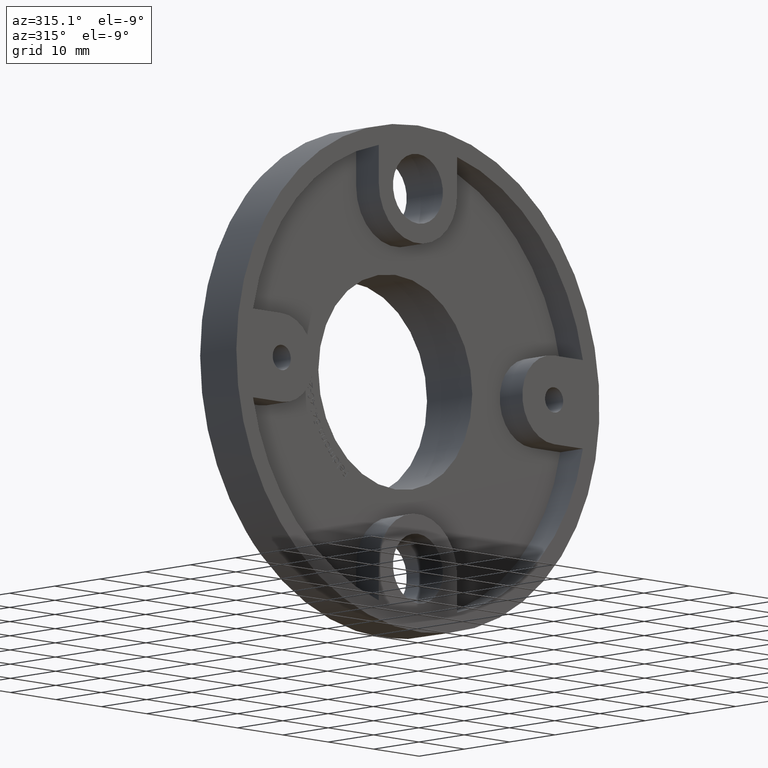
[diagram: clean part render]
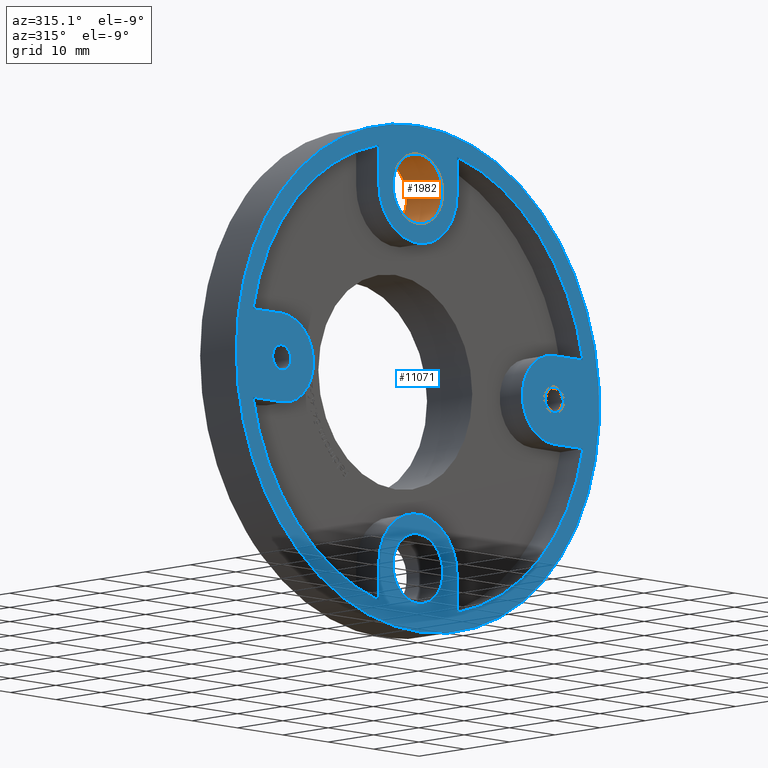
[diagram: same view with the hole feature highlighted: cylindrical wall and planar end face, labeled with their STEP entity ids]
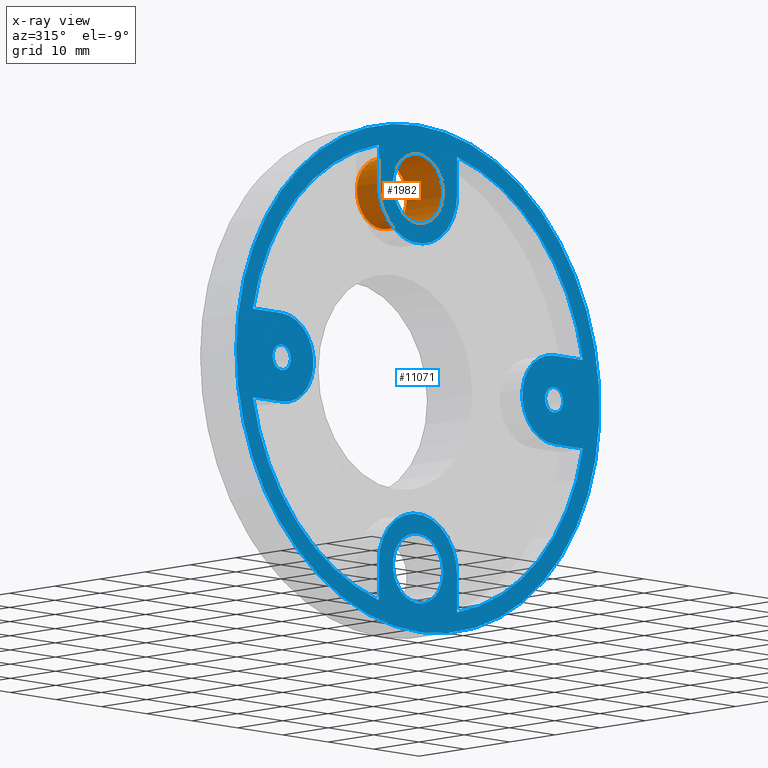
[diagram: x-ray of the same camera — body ghosted, the hole faces saturated]
A machine part, auxiliary view. The highlighted faces form one hole feature of diameter 11 mm: the cylindrical wall (entity #1982, orange) and its adjacent planar end face (entity #11071, blue) — they share a circular edge in the B-rep.
The next image is the same camera in x-ray (body ghosted, the hole faces saturated) — the bore reads through the body.
Wall:
#480 = CARTESIAN_POINT ( 'NONE',  ( 0.000000000000000000, 8.000000000000000000, 35.50000000000000000 ) ) ;
#935 = AXIS2_PLACEMENT_3D ( 'NONE', #10388, #6386, #7526 ) ;
#1571 = ORIENTED_EDGE ( 'NONE', *, *, #9051, .T. ) ;
#1664 = CIRCLE ( 'NONE', #935, 5.499999999999998224 ) ;
#1684 = CARTESIAN_POINT ( 'NONE',  ( 0.000000000000000000, 8.000000000000000000, 30.00000000000000000 ) ) ;
#1982 = ADVANCED_FACE ( 'NONE', ( #2780, #6420 ), #6261, .F. ) ;
#2780 = FACE_OUTER_BOUND ( 'NONE', #11402, .T. ) ;
#4239 = CARTESIAN_POINT ( 'NONE',  ( 0.000000000000000000, 0.000000000000000000, 35.50000000000000000 ) ) ;
#4437 = DIRECTION ( 'NONE',  ( 0.000000000000000000, 1.000000000000000000, 0.000000000000000000 ) ) ;
#6261 = CYLINDRICAL_SURFACE ( 'NONE', #11337, 5.499999999999994671 ) ;
#6386 = DIRECTION ( 'NONE',  ( 0.000000000000000000, 1.000000000000000000, 0.000000000000000000 ) ) ;
#6420 = FACE_OUTER_BOUND ( 'NONE', #11065, .T. ) ;
#6549 = CIRCLE ( 'NONE', #6919, 5.499999999999998224 ) ;
#6919 = AXIS2_PLACEMENT_3D ( 'NONE', #1684, #4437, #7369 ) ;
#7369 = DIRECTION ( 'NONE',  ( 0.000000000000000000, 0.000000000000000000, 1.000000000000000000 ) ) ;
#7526 = DIRECTION ( 'NONE',  ( 0.000000000000000000, 0.000000000000000000, 1.000000000000000000 ) ) ;
#7898 = VERTEX_POINT ( 'NONE', #480 ) ;
#8591 = EDGE_CURVE ( 'NONE', #11237, #11237, #1664, .T. ) ;
#8632 = DIRECTION ( 'NONE',  ( -0.000000000000000000, -1.000000000000000000, -0.000000000000000000 ) ) ;
#9051 = EDGE_CURVE ( 'NONE', #7898, #7898, #6549, .T. ) ;
#9112 = ORIENTED_EDGE ( 'NONE', *, *, #8591, .F. ) ;
#10388 = CARTESIAN_POINT ( 'NONE',  ( 0.000000000000000000, 0.000000000000000000, 30.00000000000000000 ) ) ;
#11065 = EDGE_LOOP ( 'NONE', ( #9112 ) ) ;
#11237 = VERTEX_POINT ( 'NONE', #4239 ) ;
#11337 = AXIS2_PLACEMENT_3D ( 'NONE', #12458, #8632, #12510 ) ;
#11402 = EDGE_LOOP ( 'NONE', ( #1571 ) ) ;
#12458 = CARTESIAN_POINT ( 'NONE',  ( 0.000000000000000000, 8.000000000000000000, 30.00000000000000000 ) ) ;
#12510 = DIRECTION ( 'NONE',  ( 0.000000000000000000, 0.000000000000000000, -1.000000000000000000 ) ) ;
End face:
#122 = CIRCLE ( 'NONE', #12150, 6.999999999999999112 ) ;
#167 = DIRECTION ( 'NONE',  ( 0.000000000000000000, 0.000000000000000000, -1.000000000000000000 ) ) ;
#199 = CARTESIAN_POINT ( 'NONE',  ( -30.00000000000000000, 0.000000000000000000, 0.000000000000000000 ) ) ;
#231 = LINE ( 'NONE', #7040, #12495 ) ;
#286 = EDGE_CURVE ( 'NONE', #6024, #6024, #5978, .T. ) ;
#299 = CIRCLE ( 'NONE', #854, 40.00000000000000000 ) ;
#378 = CIRCLE ( 'NONE', #11762, 8.625000000000000000 ) ;
#403 = CARTESIAN_POINT ( 'NONE',  ( -8.625000000000024869, -0.000000000000000000, -7.505160882693210277E-15 ) ) ;
#419 = CIRCLE ( 'NONE', #12413, 36.99999999999999289 ) ;
#431 = CIRCLE ( 'NONE', #11916, 8.625000000000000000 ) ;
#461 = LINE ( 'NONE', #10265, #9818 ) ;
#509 = DIRECTION ( 'NONE',  ( 0.000000000000000000, 0.000000000000000000, -1.000000000000000000 ) ) ;
#572 = CARTESIAN_POINT ( 'NONE',  ( 8.625000000000005329, 0.000000000000000000, -30.00000000000000000 ) ) ;
#606 = EDGE_CURVE ( 'NONE', #8385, #2814, #2642, .T. ) ;
#636 = EDGE_CURVE ( 'NONE', #10930, #7528, #4770, .T. ) ;
#684 = EDGE_CURVE ( 'NONE', #1895, #12609, #9827, .T. ) ;
#792 = LINE ( 'NONE', #8435, #6611 ) ;
#818 = EDGE_CURVE ( 'NONE', #11053, #1895, #792, .T. ) ;
#854 = AXIS2_PLACEMENT_3D ( 'NONE', #8414, #2530, #9510 ) ;
#875 = CIRCLE ( 'NONE', #12404, 36.99999999999999289 ) ;
#935 = AXIS2_PLACEMENT_3D ( 'NONE', #10388, #6386, #7526 ) ;
#963 = ORIENTED_EDGE ( 'NONE', *, *, #1779, .F. ) ;
#1089 = EDGE_CURVE ( 'NONE', #12094, #3023, #461, .T. ) ;
#1129 = VERTEX_POINT ( 'NONE', #12452 ) ;
#1350 = CARTESIAN_POINT ( 'NONE',  ( 30.00000000000000000, 0.000000000000000000, -2.000000000000003109 ) ) ;
#1438 = DIRECTION ( 'NONE',  ( 0.000000000000000000, 0.000000000000000000, -1.000000000000000000 ) ) ;
#1470 = CIRCLE ( 'NONE', #11330, 6.999999999999999112 ) ;
#1536 = CARTESIAN_POINT ( 'NONE',  ( 36.33180424916989182, 0.000000000000000000, -6.999999999999993783 ) ) ;
#1642 = LINE ( 'NONE', #2801, #5777 ) ;
#1664 = CIRCLE ( 'NONE', #935, 5.499999999999998224 ) ;
#1754 = EDGE_LOOP ( 'NONE', ( #4350 ) ) ;
#1779 = EDGE_CURVE ( 'NONE', #1908, #1908, #299, .T. ) ;
#1851 = AXIS2_PLACEMENT_3D ( 'NONE', #5494, #10439, #4569 ) ;
#1895 = VERTEX_POINT ( 'NONE', #5782 ) ;
#1908 = VERTEX_POINT ( 'NONE', #9143 ) ;
#1912 = AXIS2_PLACEMENT_3D ( 'NONE', #199, #9999, #9925 ) ;
#2140 = DIRECTION ( 'NONE',  ( -1.000000000000000000, 0.000000000000000000, -2.739698524641267176E-16 ) ) ;
#2284 = CARTESIAN_POINT ( 'NONE',  ( 0.000000000000000000, -0.000000000000000000, -7.000000000000002665 ) ) ;
#2316 = DIRECTION ( 'NONE',  ( -1.000000000000000000, 0.000000000000000000, 0.000000000000000000 ) ) ;
#2364 = ORIENTED_EDGE ( 'NONE', *, *, #8455, .F. ) ;
#2470 = VECTOR ( 'NONE', #3351, 1000.000000000000000 ) ;
#2529 = FACE_BOUND ( 'NONE', #2654, .T. ) ;
#2530 = DIRECTION ( 'NONE',  ( 0.000000000000000000, 1.000000000000000000, 0.000000000000000000 ) ) ;
#2543 = DIRECTION ( 'NONE',  ( 0.000000000000000000, 0.000000000000000000, -1.000000000000000000 ) ) ;
#2642 = LINE ( 'NONE', #3197, #12107 ) ;
#2654 = EDGE_LOOP ( 'NONE', ( #10184 ) ) ;
#2663 = AXIS2_PLACEMENT_3D ( 'NONE', #2968, #5830, #9781 ) ;
#2801 = CARTESIAN_POINT ( 'NONE',  ( 8.625000000000014211, -0.000000000000000000, -2.501720294231065622E-15 ) ) ;
#2814 = VERTEX_POINT ( 'NONE', #10207 ) ;
#2931 = CARTESIAN_POINT ( 'NONE',  ( -8.625000000000005329, 0.000000000000000000, 30.00000000000000355 ) ) ;
#2968 = CARTESIAN_POINT ( 'NONE',  ( 0.000000000000000000, 0.000000000000000000, 0.000000000000000000 ) ) ;
#3023 = VERTEX_POINT ( 'NONE', #5953 ) ;
#3165 = CIRCLE ( 'NONE', #1912, 2.000000000000003109 ) ;
#3197 = CARTESIAN_POINT ( 'NONE',  ( 0.000000000000000000, -0.000000000000000000, 7.000000000000002665 ) ) ;
#3301 = DIRECTION ( 'NONE',  ( 0.000000000000000000, -1.000000000000000000, 0.000000000000000000 ) ) ;
#3351 = DIRECTION ( 'NONE',  ( 8.701635806021088041E-16, 0.000000000000000000, -1.000000000000000000 ) ) ;
#3632 = CARTESIAN_POINT ( 'NONE',  ( -30.00000000000000000, 0.000000000000000000, 0.000000000000000000 ) ) ;
#3755 = DIRECTION ( 'NONE',  ( 0.000000000000000000, 0.000000000000000000, -1.000000000000000000 ) ) ;
#3799 = EDGE_CURVE ( 'NONE', #9249, #9249, #7038, .T. ) ;
#3861 = ORIENTED_EDGE ( 'NONE', *, *, #11663, .T. ) ;
#3914 = EDGE_CURVE ( 'NONE', #12094, #11053, #431, .T. ) ;
#4161 = VERTEX_POINT ( 'NONE', #6214 ) ;
#4183 = AXIS2_PLACEMENT_3D ( 'NONE', #5374, #12238, #509 ) ;
#4239 = CARTESIAN_POINT ( 'NONE',  ( 0.000000000000000000, 0.000000000000000000, 35.50000000000000000 ) ) ;
#4267 = DIRECTION ( 'NONE',  ( 0.000000000000000000, 0.000000000000000000, -1.000000000000000000 ) ) ;
#4350 = ORIENTED_EDGE ( 'NONE', *, *, #3799, .T. ) ;
#4486 = EDGE_CURVE ( 'NONE', #5424, #8385, #122, .T. ) ;
#4492 = VERTEX_POINT ( 'NONE', #10112 ) ;
#4507 = VERTEX_POINT ( 'NONE', #11938 ) ;
#4508 = VERTEX_POINT ( 'NONE', #10015 ) ;
#4569 = DIRECTION ( 'NONE',  ( 0.000000000000000000, 0.000000000000000000, -1.000000000000000000 ) ) ;
#4597 = DIRECTION ( 'NONE',  ( 5.801090537347391370E-16, 0.000000000000000000, 1.000000000000000000 ) ) ;
#4693 = ORIENTED_EDGE ( 'NONE', *, *, #818, .F. ) ;
#4702 = DIRECTION ( 'NONE',  ( 0.000000000000000000, 0.000000000000000000, -1.000000000000000000 ) ) ;
#4770 = LINE ( 'NONE', #403, #2470 ) ;
#4803 = EDGE_LOOP ( 'NONE', ( #963 ) ) ;
#4932 = EDGE_LOOP ( 'NONE', ( #4974 ) ) ;
#4956 = EDGE_CURVE ( 'NONE', #4507, #7528, #419, .T. ) ;
#4962 = VERTEX_POINT ( 'NONE', #572 ) ;
#4974 = ORIENTED_EDGE ( 'NONE', *, *, #286, .T. ) ;
#5027 = DIRECTION ( 'NONE',  ( 1.000000000000000000, 0.000000000000000000, 0.000000000000000000 ) ) ;
#5087 = EDGE_LOOP ( 'NONE', ( #7284, #2364, #6331, #8958, #11893, #4693, #8705, #6148, #12144, #7440, #9263, #3861, #8291, #5239, #10986, #12035 ) ) ;
#5113 = FACE_BOUND ( 'NONE', #7427, .T. ) ;
#5239 = ORIENTED_EDGE ( 'NONE', *, *, #5778, .F. ) ;
#5374 = CARTESIAN_POINT ( 'NONE',  ( 0.000000000000000000, 0.000000000000000000, 0.000000000000000000 ) ) ;
#5424 = VERTEX_POINT ( 'NONE', #8827 ) ;
#5494 = CARTESIAN_POINT ( 'NONE',  ( 0.000000000000000000, 0.000000000000000000, -30.00000000000000000 ) ) ;
#5675 = DIRECTION ( 'NONE',  ( 0.000000000000000000, -1.000000000000000000, 0.000000000000000000 ) ) ;
#5769 = CARTESIAN_POINT ( 'NONE',  ( -7.347880794884118356E-15, 0.000000000000000000, 30.00000000000000000 ) ) ;
#5777 = VECTOR ( 'NONE', #8799, 1000.000000000000000 ) ;
#5778 = EDGE_CURVE ( 'NONE', #4962, #4508, #1642, .T. ) ;
#5782 = CARTESIAN_POINT ( 'NONE',  ( -8.625000000000001776, 0.000000000000000000, 35.98068058000014702 ) ) ;
#5805 = DIRECTION ( 'NONE',  ( -0.000000000000000000, 1.000000000000000000, -0.000000000000000000 ) ) ;
#5830 = DIRECTION ( 'NONE',  ( 0.000000000000000000, 1.000000000000000000, 0.000000000000000000 ) ) ;
#5953 = CARTESIAN_POINT ( 'NONE',  ( 8.624999999999992895, 0.000000000000000000, 35.98068058000014702 ) ) ;
#5978 = CIRCLE ( 'NONE', #10695, 2.000000000000003109 ) ;
#6019 = CARTESIAN_POINT ( 'NONE',  ( 8.624999999999998224, 0.000000000000000000, 30.00000000000000711 ) ) ;
#6024 = VERTEX_POINT ( 'NONE', #1350 ) ;
#6026 = CARTESIAN_POINT ( 'NONE',  ( 30.00000000000000000, 0.000000000000000000, 0.000000000000000000 ) ) ;
#6148 = ORIENTED_EDGE ( 'NONE', *, *, #1089, .T. ) ;
#6214 = CARTESIAN_POINT ( 'NONE',  ( -30.00000000000000000, 0.000000000000000000, -7.000000000000002665 ) ) ;
#6294 = DIRECTION ( 'NONE',  ( 0.000000000000000000, -1.000000000000000000, 0.000000000000000000 ) ) ;
#6331 = ORIENTED_EDGE ( 'NONE', *, *, #9820, .T. ) ;
#6334 = LINE ( 'NONE', #2284, #12313 ) ;
#6386 = DIRECTION ( 'NONE',  ( 0.000000000000000000, 1.000000000000000000, 0.000000000000000000 ) ) ;
#6611 = VECTOR ( 'NONE', #4597, 1000.000000000000000 ) ;
#7038 = CIRCLE ( 'NONE', #1851, 5.499999999999998224 ) ;
#7040 = CARTESIAN_POINT ( 'NONE',  ( -1.917788967248887960E-15, 0.000000000000000000, 7.000000000000003553 ) ) ;
#7284 = ORIENTED_EDGE ( 'NONE', *, *, #4956, .F. ) ;
#7427 = EDGE_LOOP ( 'NONE', ( #8041 ) ) ;
#7440 = ORIENTED_EDGE ( 'NONE', *, *, #606, .F. ) ;
#7526 = DIRECTION ( 'NONE',  ( 0.000000000000000000, 0.000000000000000000, 1.000000000000000000 ) ) ;
#7528 = VERTEX_POINT ( 'NONE', #11129 ) ;
#7710 = DIRECTION ( 'NONE',  ( 0.000000000000000000, 0.000000000000000000, -1.000000000000000000 ) ) ;
#7900 = DIRECTION ( 'NONE',  ( 0.000000000000000000, 1.000000000000000000, -0.000000000000000000 ) ) ;
#8041 = ORIENTED_EDGE ( 'NONE', *, *, #9420, .T. ) ;
#8048 = FACE_OUTER_BOUND ( 'NONE', #4803, .T. ) ;
#8140 = DIRECTION ( 'NONE',  ( -1.160218107469479063E-15, 0.000000000000000000, 1.000000000000000000 ) ) ;
#8212 = CARTESIAN_POINT ( 'NONE',  ( 0.000000000000000000, 0.000000000000000000, -35.50000000000000000 ) ) ;
#8248 = CARTESIAN_POINT ( 'NONE',  ( 30.00000000000000000, 0.000000000000000000, 7.347880794884118356E-15 ) ) ;
#8291 = ORIENTED_EDGE ( 'NONE', *, *, #9784, .F. ) ;
#8378 = DIRECTION ( 'NONE',  ( 0.000000000000000000, -1.000000000000000000, 0.000000000000000000 ) ) ;
#8382 = LINE ( 'NONE', #10045, #11107 ) ;
#8385 = VERTEX_POINT ( 'NONE', #9700 ) ;
#8414 = CARTESIAN_POINT ( 'NONE',  ( 0.000000000000000000, 0.000000000000000000, 0.000000000000000000 ) ) ;
#8435 = CARTESIAN_POINT ( 'NONE',  ( -8.625000000000023093, -0.000000000000000000, 5.003440588462138344E-15 ) ) ;
#8455 = EDGE_CURVE ( 'NONE', #4161, #4507, #6334, .T. ) ;
#8539 = CIRCLE ( 'NONE', #4183, 36.99999999999999289 ) ;
#8591 = EDGE_CURVE ( 'NONE', #11237, #11237, #1664, .T. ) ;
#8687 = FACE_BOUND ( 'NONE', #5087, .T. ) ;
#8698 = CARTESIAN_POINT ( 'NONE',  ( -8.624999999999998224, 0.000000000000000000, -30.00000000000000355 ) ) ;
#8705 = ORIENTED_EDGE ( 'NONE', *, *, #3914, .F. ) ;
#8712 = CARTESIAN_POINT ( 'NONE',  ( 0.000000000000000000, 0.000000000000000000, 0.000000000000000000 ) ) ;
#8799 = DIRECTION ( 'NONE',  ( -2.900545268673694206E-16, 0.000000000000000000, -1.000000000000000000 ) ) ;
#8827 = CARTESIAN_POINT ( 'NONE',  ( 30.00000000000000000, 0.000000000000000000, -6.999999999999995559 ) ) ;
#8958 = ORIENTED_EDGE ( 'NONE', *, *, #10474, .T. ) ;
#9143 = CARTESIAN_POINT ( 'NONE',  ( 0.000000000000000000, 0.000000000000000000, 40.00000000000000000 ) ) ;
#9201 = DIRECTION ( 'NONE',  ( -0.000000000000000000, 1.000000000000000000, -0.000000000000000000 ) ) ;
#9249 = VERTEX_POINT ( 'NONE', #8212 ) ;
#9261 = FACE_BOUND ( 'NONE', #1754, .T. ) ;
#9263 = ORIENTED_EDGE ( 'NONE', *, *, #4486, .F. ) ;
#9303 = CARTESIAN_POINT ( 'NONE',  ( 0.000000000000000000, 0.000000000000000000, -30.00000000000000000 ) ) ;
#9420 = EDGE_CURVE ( 'NONE', #4492, #4492, #3165, .T. ) ;
#9510 = DIRECTION ( 'NONE',  ( 0.000000000000000000, 0.000000000000000000, 1.000000000000000000 ) ) ;
#9700 = CARTESIAN_POINT ( 'NONE',  ( 30.00000000000000000, 0.000000000000000000, 7.000000000000002665 ) ) ;
#9777 = VERTEX_POINT ( 'NONE', #1536 ) ;
#9781 = DIRECTION ( 'NONE',  ( 0.000000000000000000, -0.000000000000000000, 1.000000000000000000 ) ) ;
#9784 = EDGE_CURVE ( 'NONE', #4508, #9777, #875, .T. ) ;
#9818 = VECTOR ( 'NONE', #8140, 1000.000000000000000 ) ;
#9820 = EDGE_CURVE ( 'NONE', #4161, #1129, #1470, .T. ) ;
#9827 = CIRCLE ( 'NONE', #12656, 36.99999999999999289 ) ;
#9870 = CARTESIAN_POINT ( 'NONE',  ( -36.33180424916989182, 0.000000000000000000, 6.999999999999993783 ) ) ;
#9925 = DIRECTION ( 'NONE',  ( 0.000000000000000000, 0.000000000000000000, 1.000000000000000000 ) ) ;
#9999 = DIRECTION ( 'NONE',  ( 0.000000000000000000, 1.000000000000000000, 0.000000000000000000 ) ) ;
#10015 = CARTESIAN_POINT ( 'NONE',  ( 8.625000000000003553, 0.000000000000000000, -35.98068058000014702 ) ) ;
#10045 = CARTESIAN_POINT ( 'NONE',  ( 1.917788967248887960E-15, 0.000000000000000000, -7.000000000000003553 ) ) ;
#10079 = CARTESIAN_POINT ( 'NONE',  ( 0.000000000000000000, 0.000000000000000000, 0.000000000000000000 ) ) ;
#10112 = CARTESIAN_POINT ( 'NONE',  ( -30.00000000000000000, 0.000000000000000000, 2.000000000000003109 ) ) ;
#10165 = DIRECTION ( 'NONE',  ( 1.000000000000000000, 0.000000000000000000, 2.739698524641267176E-16 ) ) ;
#10184 = ORIENTED_EDGE ( 'NONE', *, *, #8591, .T. ) ;
#10207 = CARTESIAN_POINT ( 'NONE',  ( 36.33180424916989182, 0.000000000000000000, 7.000000000000002665 ) ) ;
#10265 = CARTESIAN_POINT ( 'NONE',  ( 8.625000000000033751, 0.000000000000000000, 1.000688117692429562E-14 ) ) ;
#10388 = CARTESIAN_POINT ( 'NONE',  ( 0.000000000000000000, 0.000000000000000000, 30.00000000000000000 ) ) ;
#10439 = DIRECTION ( 'NONE',  ( 0.000000000000000000, 1.000000000000000000, -0.000000000000000000 ) ) ;
#10474 = EDGE_CURVE ( 'NONE', #1129, #12609, #231, .T. ) ;
#10695 = AXIS2_PLACEMENT_3D ( 'NONE', #6026, #7900, #167 ) ;
#10727 = EDGE_CURVE ( 'NONE', #2814, #3023, #8539, .T. ) ;
#10753 = PLANE ( 'NONE',  #2663 ) ;
#10930 = VERTEX_POINT ( 'NONE', #8698 ) ;
#10980 = DIRECTION ( 'NONE',  ( 0.000000000000000000, 0.000000000000000000, -1.000000000000000000 ) ) ;
#10986 = ORIENTED_EDGE ( 'NONE', *, *, #11859, .T. ) ;
#11053 = VERTEX_POINT ( 'NONE', #2931 ) ;
#11071 = ADVANCED_FACE ( 'NONE', ( #8687, #8048, #5113, #2529, #11270, #9261 ), #10753, .F. ) ;
#11107 = VECTOR ( 'NONE', #10165, 1000.000000000000000 ) ;
#11129 = CARTESIAN_POINT ( 'NONE',  ( -8.624999999999992895, 0.000000000000000000, -35.98068058000014702 ) ) ;
#11237 = VERTEX_POINT ( 'NONE', #4239 ) ;
#11270 = FACE_BOUND ( 'NONE', #4932, .T. ) ;
#11311 = CARTESIAN_POINT ( 'NONE',  ( 0.000000000000000000, 0.000000000000000000, 0.000000000000000000 ) ) ;
#11330 = AXIS2_PLACEMENT_3D ( 'NONE', #3632, #12544, #7710 ) ;
#11663 = EDGE_CURVE ( 'NONE', #5424, #9777, #8382, .T. ) ;
#11762 = AXIS2_PLACEMENT_3D ( 'NONE', #9303, #8378, #2543 ) ;
#11859 = EDGE_CURVE ( 'NONE', #4962, #10930, #378, .T. ) ;
#11893 = ORIENTED_EDGE ( 'NONE', *, *, #684, .F. ) ;
#11916 = AXIS2_PLACEMENT_3D ( 'NONE', #5769, #5805, #3755 ) ;
#11938 = CARTESIAN_POINT ( 'NONE',  ( -36.33180424916989182, 0.000000000000000000, -7.000000000000002665 ) ) ;
#12035 = ORIENTED_EDGE ( 'NONE', *, *, #636, .T. ) ;
#12094 = VERTEX_POINT ( 'NONE', #6019 ) ;
#12107 = VECTOR ( 'NONE', #5027, 1000.000000000000000 ) ;
#12144 = ORIENTED_EDGE ( 'NONE', *, *, #10727, .F. ) ;
#12150 = AXIS2_PLACEMENT_3D ( 'NONE', #8248, #9201, #10980 ) ;
#12238 = DIRECTION ( 'NONE',  ( 0.000000000000000000, -1.000000000000000000, 0.000000000000000000 ) ) ;
#12313 = VECTOR ( 'NONE', #2316, 1000.000000000000000 ) ;
#12404 = AXIS2_PLACEMENT_3D ( 'NONE', #8712, #5675, #4702 ) ;
#12413 = AXIS2_PLACEMENT_3D ( 'NONE', #11311, #3301, #4267 ) ;
#12452 = CARTESIAN_POINT ( 'NONE',  ( -30.00000000000000000, 0.000000000000000000, 6.999999999999995559 ) ) ;
#12495 = VECTOR ( 'NONE', #2140, 1000.000000000000000 ) ;
#12544 = DIRECTION ( 'NONE',  ( 0.000000000000000000, -1.000000000000000000, 0.000000000000000000 ) ) ;
#12609 = VERTEX_POINT ( 'NONE', #9870 ) ;
#12656 = AXIS2_PLACEMENT_3D ( 'NONE', #10079, #6294, #1438 ) ;